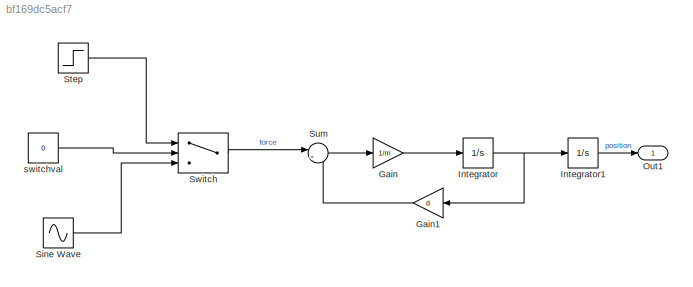
MODEL slx_bf169dc5acf7
KIND model
CONFIG AbsTol = auto
CONFIG EnableMultiTasking = off
CONFIG FixedStep = auto
CONFIG MaxStep = auto
CONFIG MinStep = auto
CONFIG RelTol = 1e-3
CONFIG SampleTimeConstraint = Unconstrained
CONFIG SolverName = VariableStepAuto
CONFIG StartTime = 0.0
CONFIG StopTime = 20
BLOCK [Gain] Gain
  Gain = 1/m
BLOCK [Gain] Gain1
  Gain = d
BLOCK [Integrator] Integrator
BLOCK [Integrator] Integrator1
BLOCK [Outport] Out1
BLOCK [Sin] Sine Wave
  Frequency = 10
  SampleTime = 0
BLOCK [Step] Step
  SampleTime = 0
  Time = 0
BLOCK [Sum] Sum
  Inputs = |+-
BLOCK [Switch] Switch
  Criteria = u2 > Threshold
  InputSameDT = off
  SaturateOnIntegerOverflow = off
BLOCK [Constant] switchval
  Value = 0
LINE Gain1:1 -> Sum:2
LINE Gain:1 -> Integrator:1
LINE Integrator1:1 -> Out1:1
NET Integrator:1 -> Gain1:1, Integrator1:1
LINE Sine Wave:1 -> Switch:3
LINE Step:1 -> Switch:1
LINE Sum:1 -> Gain:1
LINE Switch:1 -> Sum:1
LINE switchval:1 -> Switch:2
note: NET lines group one-source signal fan-out (src -> all destinations, sorted); 1:1 wires keep LINE
